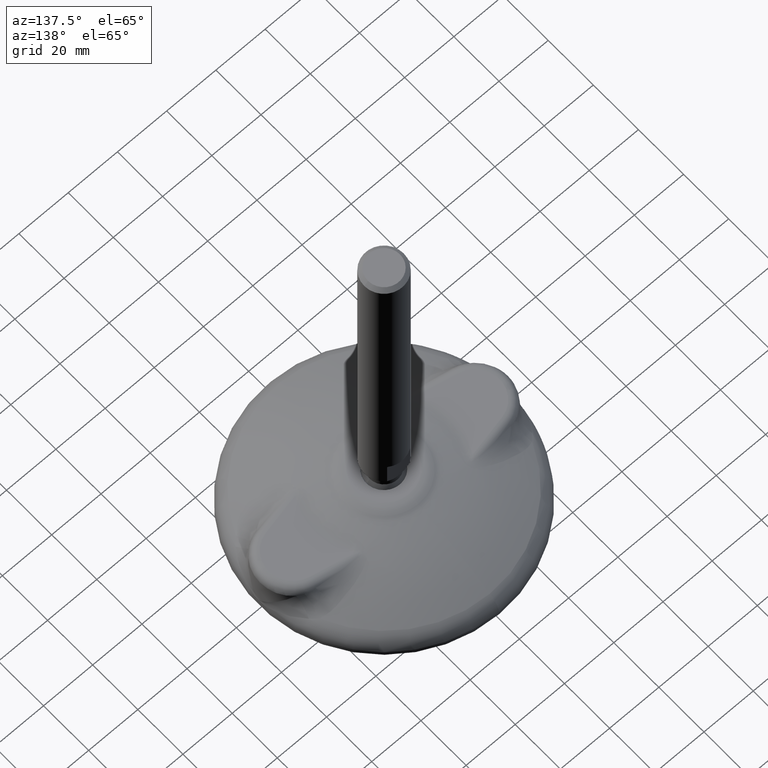
[diagram: clean part render]
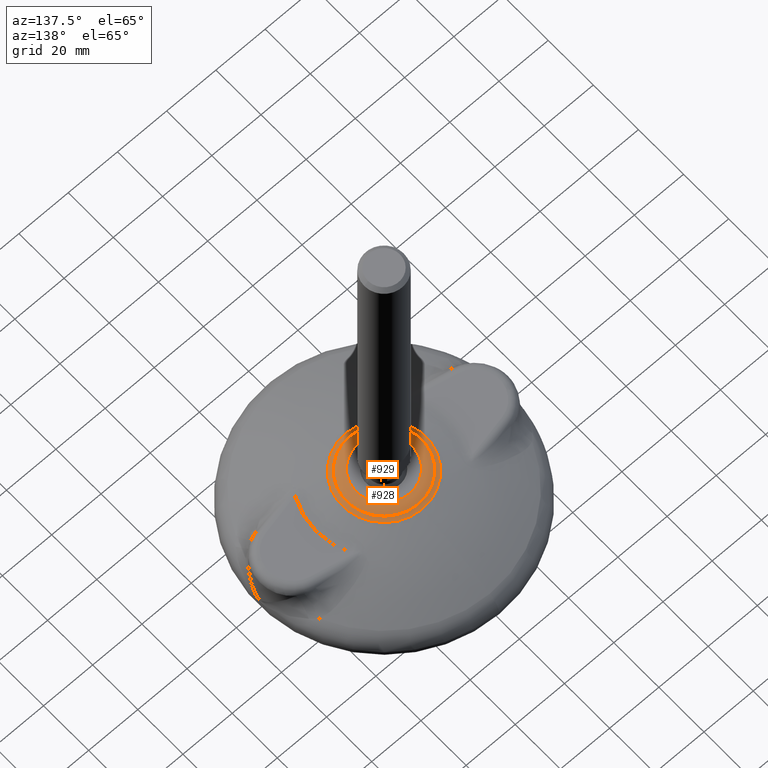
[diagram: same view with one multi-face feature highlighted, each face labeled with its STEP entity id]
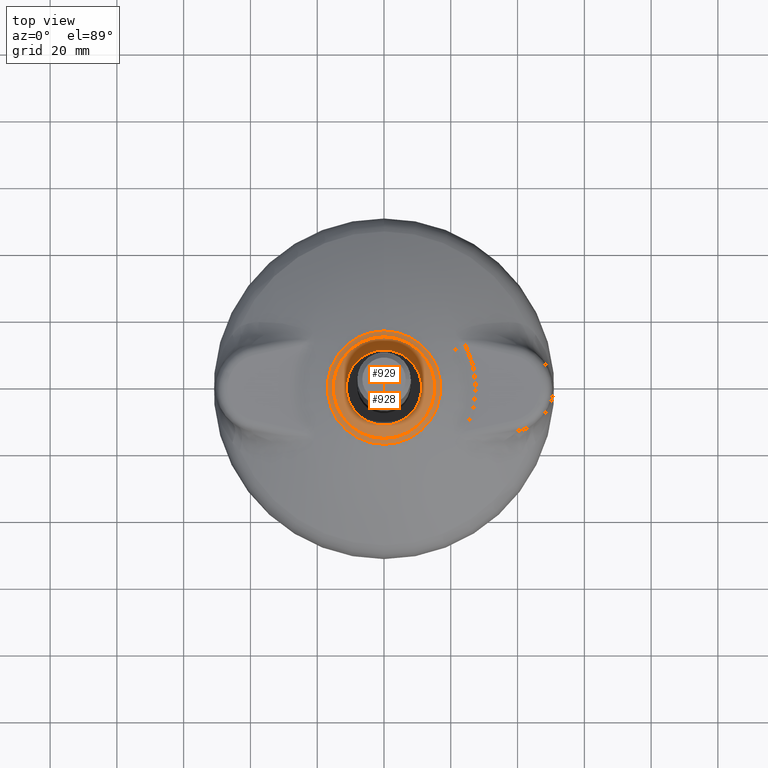
[diagram: same view with one multi-face feature highlighted, each face labeled with its STEP entity id]
A machine part, auxiliary view. The highlighted faces form ONE feature: a constant-radius fillet chain: 2 tangent blend faces with common blend radius 7.5 mm. The faces share edges in the B-rep.
A second angle (top view) of the same feature is appended — it is thin or edge-on in the first view.
Their STEP definitions:
[1] entity #929 (Torus):
#40=TOROIDAL_SURFACE('',#1043,11.2500000000002,8.);
#164=FACE_OUTER_BOUND('',#231,.T.);
#231=EDGE_LOOP('',(#659,#660,#661,#662));
#305=CIRCLE('',#1041,15.2112618341804);
#307=CIRCLE('',#1044,11.2500000000003);
#308=CIRCLE('',#1045,8.);
#405=VERTEX_POINT('',#4205);
#406=VERTEX_POINT('',#4209);
#501=EDGE_CURVE('',#405,#405,#305,.T.);
#503=EDGE_CURVE('',#406,#406,#307,.T.);
#504=EDGE_CURVE('',#406,#405,#308,.T.);
#659=ORIENTED_EDGE('',*,*,#503,.F.);
#660=ORIENTED_EDGE('',*,*,#504,.T.);
#661=ORIENTED_EDGE('',*,*,#501,.T.);
#662=ORIENTED_EDGE('',*,*,#504,.F.);
#929=ADVANCED_FACE('',(#164),#40,.T.);
#1041=AXIS2_PLACEMENT_3D('',#4206,#1211,#1212);
#1043=AXIS2_PLACEMENT_3D('',#4208,#1215,#1216);
#1044=AXIS2_PLACEMENT_3D('',#4210,#1217,#1218);
#1045=AXIS2_PLACEMENT_3D('',#4211,#1219,#1220);
#1211=DIRECTION('center_axis',(0.,1.171453E-15,1.));
#1212=DIRECTION('ref_axis',(0.,-1.,1.171453E-15));
#1215=DIRECTION('center_axis',(0.,1.171453E-15,1.));
#1216=DIRECTION('ref_axis',(0.,-1.,1.10733932845729E-15));
#1217=DIRECTION('center_axis',(0.,1.171453E-15,1.));
#1218=DIRECTION('ref_axis',(0.,-1.,1.171453E-15));
#1219=DIRECTION('center_axis',(-1.,-1.22464679914735E-16,1.43461616680156E-31));
#1220=DIRECTION('ref_axis',(-1.22464679914735E-16,1.,-1.15347846714301E-15));
#4205=CARTESIAN_POINT('',(-1.86284231162213E-15,15.2112618341804,21.4504322563353));
#4206=CARTESIAN_POINT('Origin',(0.,5.025636E-14,21.4504322563353));
#4208=CARTESIAN_POINT('Origin',(0.,1.698608E-14,14.5000074721176));
#4209=CARTESIAN_POINT('',(-1.37772764904081E-15,11.2500000000004,22.5000074721176));
#4210=CARTESIAN_POINT('Origin',(0.,5.271542E-14,22.5000074721176));
#4211=CARTESIAN_POINT('Origin',(-1.3777276490408E-15,11.2500000000002,14.5000074721176));
[2] entity #928 (Torus):
#39=TOROIDAL_SURFACE('',#1040,18.7330000000003,7.);
#163=FACE_OUTER_BOUND('',#230,.T.);
#230=EDGE_LOOP('',(#655,#656,#657,#658));
#296=CIRCLE('',#1025,16.986756733163);
#305=CIRCLE('',#1041,15.2112618341804);
#306=CIRCLE('',#1042,7.);
#385=VERTEX_POINT('',#2750);
#405=VERTEX_POINT('',#4205);
#473=EDGE_CURVE('',#385,#385,#296,.T.);
#501=EDGE_CURVE('',#405,#405,#305,.T.);
#502=EDGE_CURVE('',#405,#385,#306,.T.);
#655=ORIENTED_EDGE('',*,*,#501,.F.);
#656=ORIENTED_EDGE('',*,*,#502,.T.);
#657=ORIENTED_EDGE('',*,*,#473,.T.);
#658=ORIENTED_EDGE('',*,*,#502,.F.);
#928=ADVANCED_FACE('',(#163),#39,.F.);
#1025=AXIS2_PLACEMENT_3D('',#2751,#1176,#1177);
#1040=AXIS2_PLACEMENT_3D('',#4204,#1209,#1210);
#1041=AXIS2_PLACEMENT_3D('',#4206,#1211,#1212);
#1042=AXIS2_PLACEMENT_3D('',#4207,#1213,#1214);
#1176=DIRECTION('center_axis',(0.,1.171453E-15,1.));
#1177=DIRECTION('ref_axis',(0.,-1.,1.171453E-15));
#1209=DIRECTION('center_axis',(0.,1.171453E-15,1.));
#1210=DIRECTION('ref_axis',(0.,-1.,1.10448488051932E-15));
#1211=DIRECTION('center_axis',(0.,1.171453E-15,1.));
#1212=DIRECTION('ref_axis',(0.,-1.,1.171453E-15));
#1213=DIRECTION('center_axis',(1.,1.22464679914735E-16,-1.43461616680156E-31));
#1214=DIRECTION('ref_axis',(-1.22464679914735E-16,1.,-1.20803033806801E-15));
#2750=CARTESIAN_POINT('',(-2.08027772611628E-15,16.986756733163,20.7213177423081));
#2751=CARTESIAN_POINT('Origin',(0.,4.854811E-14,20.7213177423081));
#4204=CARTESIAN_POINT('Origin',(0.,3.221498E-14,27.5000074721176));
#4205=CARTESIAN_POINT('',(-1.86284231162213E-15,15.2112618341804,21.4504322563353));
#4206=CARTESIAN_POINT('Origin',(0.,5.025636E-14,21.4504322563353));
#4207=CARTESIAN_POINT('Origin',(-2.29413084884277E-15,18.7330000000003,
27.5000074721176));